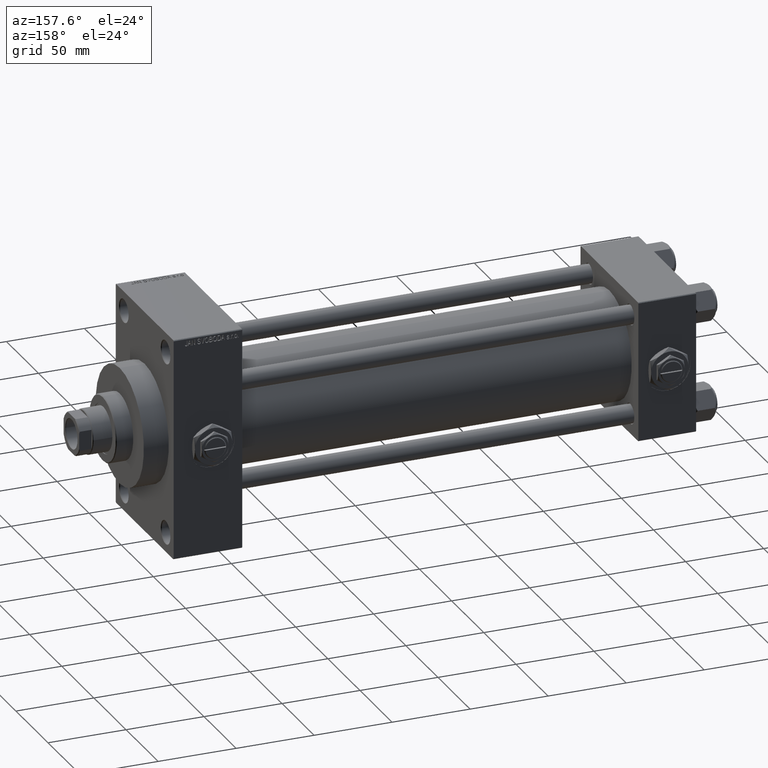
[diagram: clean part render]
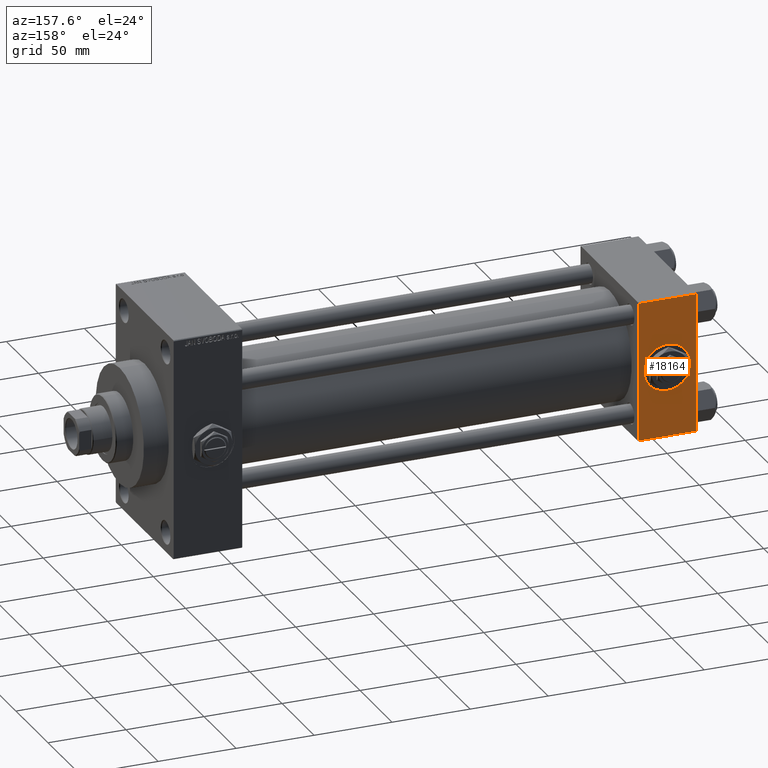
[diagram: same view with one face highlighted and labeled with its STEP entity id]
A machine part, auxiliary view. The second image highlights one B-rep face of the part: STEP entity #18164.
In plain terms, the highlighted planar face has unit normal (0, 1, 0).
Its self-contained STEP definition (entity closure, byte-faithful):
#396 = CIRCLE ( 'NONE', #26649, 15.00000000000000178 ) ;
#435 = VERTEX_POINT ( 'NONE', #5316 ) ;
#1479 = LINE ( 'NONE', #12199, #2025 ) ;
#2025 = VECTOR ( 'NONE', #15699, 1000.000000000000000 ) ;
#2451 = VERTEX_POINT ( 'NONE', #26292 ) ;
#3948 = DIRECTION ( 'NONE',  ( 0.000000000000000000, 1.000000000000000000, 0.000000000000000000 ) ) ;
#4610 = DIRECTION ( 'NONE',  ( 0.000000000000000000, -0.000000000000000000, 1.000000000000000000 ) ) ;
#5316 = CARTESIAN_POINT ( 'NONE',  ( 18.50000000000000355, 44.99999999999998579, -15.00000000000000178 ) ) ;
#5713 = LINE ( 'NONE', #16674, #21333 ) ;
#5949 = DIRECTION ( 'NONE',  ( 0.000000000000000000, 0.000000000000000000, 1.000000000000000000 ) ) ;
#9446 = ORIENTED_EDGE ( 'NONE', *, *, #29252, .F. ) ;
#12034 = CARTESIAN_POINT ( 'NONE',  ( 37.00000000000000000, 44.99999999999998579, 44.50000000000001421 ) ) ;
#12199 = CARTESIAN_POINT ( 'NONE',  ( 0.000000000000000000, 44.99999999999998579, 45.00000000000001421 ) ) ;
#12684 = DIRECTION ( 'NONE',  ( 0.000000000000000000, 0.000000000000000000, -1.000000000000000000 ) ) ;
#12943 = CARTESIAN_POINT ( 'NONE',  ( 37.00000000000000000, 44.99999999999998579, -44.49999999999995737 ) ) ;
#13496 = VECTOR ( 'NONE', #15765, 1000.000000000000000 ) ;
#14992 = VERTEX_POINT ( 'NONE', #12943 ) ;
#15699 = DIRECTION ( 'NONE',  ( 0.000000000000000000, 0.000000000000000000, -1.000000000000000000 ) ) ;
#15765 = DIRECTION ( 'NONE',  ( -1.000000000000000000, 0.000000000000000000, 0.000000000000000000 ) ) ;
#16674 = CARTESIAN_POINT ( 'NONE',  ( 37.00000000000000000, 44.99999999999998579, 45.00000000000001421 ) ) ;
#18164 = ADVANCED_FACE ( 'NONE', ( #33523, #36760 ), #30755, .T. ) ;
#18167 = AXIS2_PLACEMENT_3D ( 'NONE', #32111, #39830, #5949 ) ;
#19138 = DIRECTION ( 'NONE',  ( 0.000000000000000000, 0.000000000000000000, 1.000000000000000000 ) ) ;
#19460 = EDGE_CURVE ( 'NONE', #2451, #29562, #1479, .T. ) ;
#20045 = DIRECTION ( 'NONE',  ( -0.000000000000000000, 1.000000000000000000, 0.000000000000000000 ) ) ;
#20375 = ORIENTED_EDGE ( 'NONE', *, *, #29307, .T. ) ;
#21113 = ORIENTED_EDGE ( 'NONE', *, *, #39530, .T. ) ;
#21333 = VECTOR ( 'NONE', #12684, 1000.000000000000000 ) ;
#22999 = LINE ( 'NONE', #31699, #13496 ) ;
#24842 = CARTESIAN_POINT ( 'NONE',  ( 0.000000000000000000, 44.99999999999998579, -44.49999999999995737 ) ) ;
#26292 = CARTESIAN_POINT ( 'NONE',  ( 0.000000000000000000, 44.99999999999998579, 44.50000000000001421 ) ) ;
#26649 = AXIS2_PLACEMENT_3D ( 'NONE', #45788, #3948, #19138 ) ;
#27233 = DIRECTION ( 'NONE',  ( 1.000000000000000000, 0.000000000000000000, 0.000000000000000000 ) ) ;
#29252 = EDGE_CURVE ( 'NONE', #47387, #435, #41200, .T. ) ;
#29307 = EDGE_CURVE ( 'NONE', #47186, #14992, #5713, .T. ) ;
#29562 = VERTEX_POINT ( 'NONE', #24842 ) ;
#29850 = CARTESIAN_POINT ( 'NONE',  ( 18.50000000000000000, 44.99999999999998579, 15.00000000000000178 ) ) ;
#30669 = ORIENTED_EDGE ( 'NONE', *, *, #47622, .F. ) ;
#30735 = ORIENTED_EDGE ( 'NONE', *, *, #19460, .F. ) ;
#30755 = PLANE ( 'NONE',  #33818 ) ;
#31699 = CARTESIAN_POINT ( 'NONE',  ( 37.00000000000000000, 44.99999999999998579, -44.49999999999998579 ) ) ;
#32111 = CARTESIAN_POINT ( 'NONE',  ( 18.50000000000000000, 44.99999999999998579, 0.000000000000000000 ) ) ;
#33523 = FACE_BOUND ( 'NONE', #49173, .T. ) ;
#33818 = AXIS2_PLACEMENT_3D ( 'NONE', #37980, #20045, #4610 ) ;
#35377 = CARTESIAN_POINT ( 'NONE',  ( 37.00000000000000000, 44.99999999999998579, 44.50000000000001421 ) ) ;
#36494 = EDGE_CURVE ( 'NONE', #14992, #29562, #22999, .T. ) ;
#36760 = FACE_OUTER_BOUND ( 'NONE', #45425, .T. ) ;
#37980 = CARTESIAN_POINT ( 'NONE',  ( 37.00000000000000000, 44.99999999999998579, 45.00000000000001421 ) ) ;
#39530 = EDGE_CURVE ( 'NONE', #2451, #47186, #46156, .T. ) ;
#39830 = DIRECTION ( 'NONE',  ( 0.000000000000000000, 1.000000000000000000, 0.000000000000000000 ) ) ;
#41200 = CIRCLE ( 'NONE', #18167, 15.00000000000000178 ) ;
#41440 = VECTOR ( 'NONE', #27233, 1000.000000000000000 ) ;
#44800 = ORIENTED_EDGE ( 'NONE', *, *, #36494, .T. ) ;
#45425 = EDGE_LOOP ( 'NONE', ( #20375, #44800, #30735, #21113 ) ) ;
#45788 = CARTESIAN_POINT ( 'NONE',  ( 18.50000000000000000, 44.99999999999998579, 0.000000000000000000 ) ) ;
#46156 = LINE ( 'NONE', #12034, #41440 ) ;
#47186 = VERTEX_POINT ( 'NONE', #35377 ) ;
#47387 = VERTEX_POINT ( 'NONE', #29850 ) ;
#47622 = EDGE_CURVE ( 'NONE', #435, #47387, #396, .T. ) ;
#49173 = EDGE_LOOP ( 'NONE', ( #9446, #30669 ) ) ;